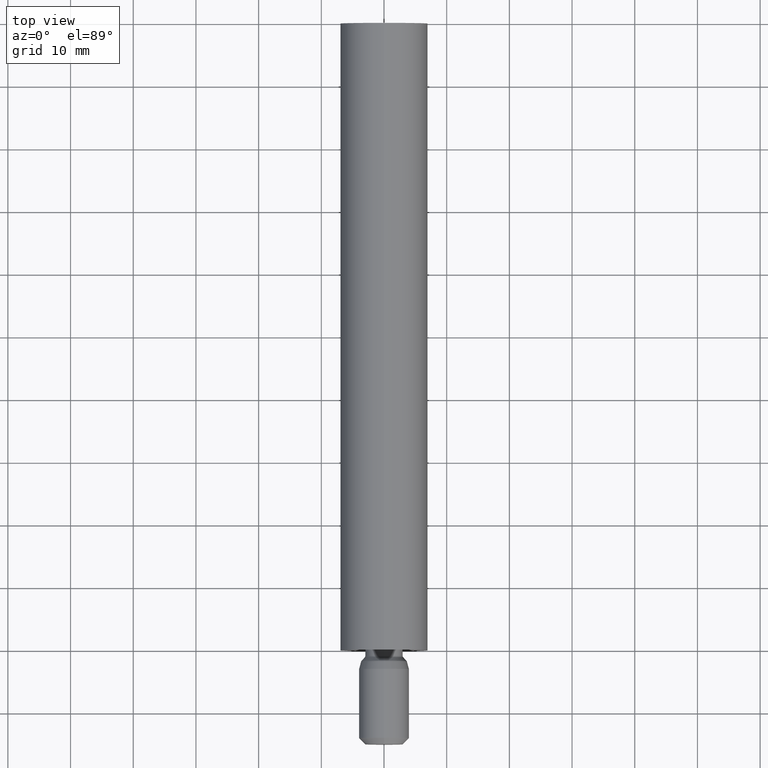
[diagram: clean part render]
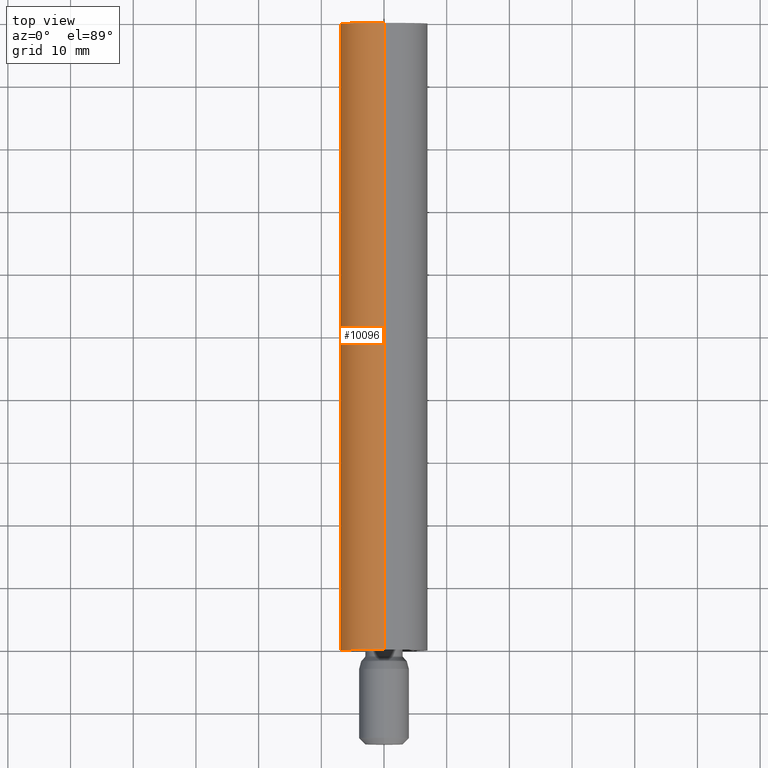
[diagram: same view with one face highlighted and labeled with its STEP entity id]
A machine part, top view. The second image highlights one B-rep face of the part: STEP entity #10096.
In plain terms, the highlighted cylindrical surface (partial cylindrical patch) has radius 7 mm, axis along (-0, -1, -0).
Its self-contained STEP definition (entity closure, byte-faithful):
#175 = CARTESIAN_POINT ( 'NONE',  ( 0.0000000000000000000, 100.0000000000000000, -7.000000000000000000 ) ) ;
#647 = DIRECTION ( 'NONE',  ( -0.0000000000000000000, -1.000000000000000000, -0.0000000000000000000 ) ) ;
#746 = CIRCLE ( 'NONE', #9085, 7.000000000000000000 ) ;
#1509 = CIRCLE ( 'NONE', #14529, 7.000000000000000000 ) ;
#2251 = EDGE_CURVE ( 'NONE', #2601, #13364, #13244, .T. ) ;
#2258 = ORIENTED_EDGE ( 'NONE', *, *, #3890, .F. ) ;
#2601 = VERTEX_POINT ( 'NONE', #175 ) ;
#3075 = AXIS2_PLACEMENT_3D ( 'NONE', #11385, #13631, #4433 ) ;
#3563 = VECTOR ( 'NONE', #3838, 1000.000000000000000 ) ;
#3838 = DIRECTION ( 'NONE',  ( -0.0000000000000000000, -1.000000000000000000, -0.0000000000000000000 ) ) ;
#3890 = EDGE_CURVE ( 'NONE', #14009, #12123, #14455, .T. ) ;
#3998 = VECTOR ( 'NONE', #647, 1000.000000000000000 ) ;
#4201 = EDGE_CURVE ( 'NONE', #14009, #2601, #746, .T. ) ;
#4433 = DIRECTION ( 'NONE',  ( 0.0000000000000000000, 0.0000000000000000000, -1.000000000000000000 ) ) ;
#5193 = CARTESIAN_POINT ( 'NONE',  ( 0.0000000000000000000, 0.0000000000000000000, -7.000000000000000000 ) ) ;
#6567 = ORIENTED_EDGE ( 'NONE', *, *, #11711, .F. ) ;
#7699 = ORIENTED_EDGE ( 'NONE', *, *, #4201, .T. ) ;
#8194 = CARTESIAN_POINT ( 'NONE',  ( 8.572527594031473200E-016, 0.0000000000000000000, 7.000000000000000000 ) ) ;
#8199 = DIRECTION ( 'NONE',  ( -0.0000000000000000000, -1.000000000000000000, -0.0000000000000000000 ) ) ;
#8289 = FACE_OUTER_BOUND ( 'NONE', #14580, .T. ) ;
#8531 = CARTESIAN_POINT ( 'NONE',  ( 0.0000000000000000000, 0.0000000000000000000, -7.000000000000000000 ) ) ;
#8949 = CARTESIAN_POINT ( 'NONE',  ( 8.572527594031472200E-016, 0.0000000000000000000, 7.000000000000000000 ) ) ;
#9085 = AXIS2_PLACEMENT_3D ( 'NONE', #9501, #8199, #9394 ) ;
#9394 = DIRECTION ( 'NONE',  ( 0.0000000000000000000, 0.0000000000000000000, -1.000000000000000000 ) ) ;
#9501 = CARTESIAN_POINT ( 'NONE',  ( 0.0000000000000000000, 100.0000000000000000, 0.0000000000000000000 ) ) ;
#9621 = ORIENTED_EDGE ( 'NONE', *, *, #2251, .T. ) ;
#9768 = DIRECTION ( 'NONE',  ( -0.0000000000000000000, -1.000000000000000000, -0.0000000000000000000 ) ) ;
#10096 = ADVANCED_FACE ( 'NONE', ( #8289 ), #12745, .T. ) ;
#10737 = CARTESIAN_POINT ( 'NONE',  ( 0.0000000000000000000, 0.0000000000000000000, 0.0000000000000000000 ) ) ;
#10783 = DIRECTION ( 'NONE',  ( 0.0000000000000000000, 0.0000000000000000000, -1.000000000000000000 ) ) ;
#11385 = CARTESIAN_POINT ( 'NONE',  ( 0.0000000000000000000, 0.0000000000000000000, 0.0000000000000000000 ) ) ;
#11711 = EDGE_CURVE ( 'NONE', #12123, #13364, #1509, .T. ) ;
#12123 = VERTEX_POINT ( 'NONE', #8949 ) ;
#12745 = CYLINDRICAL_SURFACE ( 'NONE', #3075, 7.000000000000000000 ) ;
#12879 = CARTESIAN_POINT ( 'NONE',  ( 8.572527594031473200E-016, 100.0000000000000000, 7.000000000000000000 ) ) ;
#13244 = LINE ( 'NONE', #8531, #3998 ) ;
#13364 = VERTEX_POINT ( 'NONE', #5193 ) ;
#13631 = DIRECTION ( 'NONE',  ( -0.0000000000000000000, -1.000000000000000000, -0.0000000000000000000 ) ) ;
#14009 = VERTEX_POINT ( 'NONE', #12879 ) ;
#14455 = LINE ( 'NONE', #8194, #3563 ) ;
#14529 = AXIS2_PLACEMENT_3D ( 'NONE', #10737, #9768, #10783 ) ;
#14580 = EDGE_LOOP ( 'NONE', ( #2258, #7699, #9621, #6567 ) ) ;